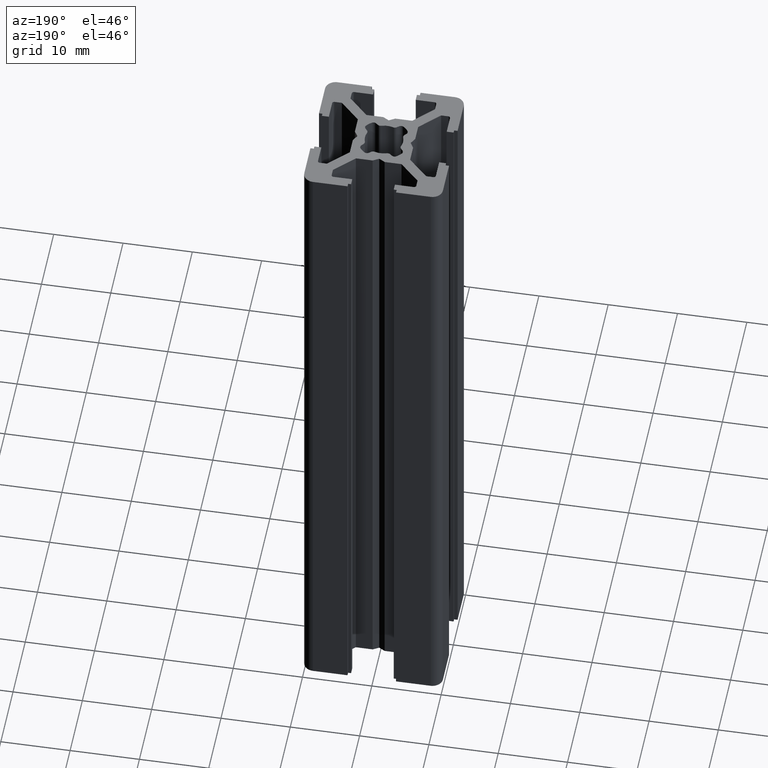
[diagram: clean part render]
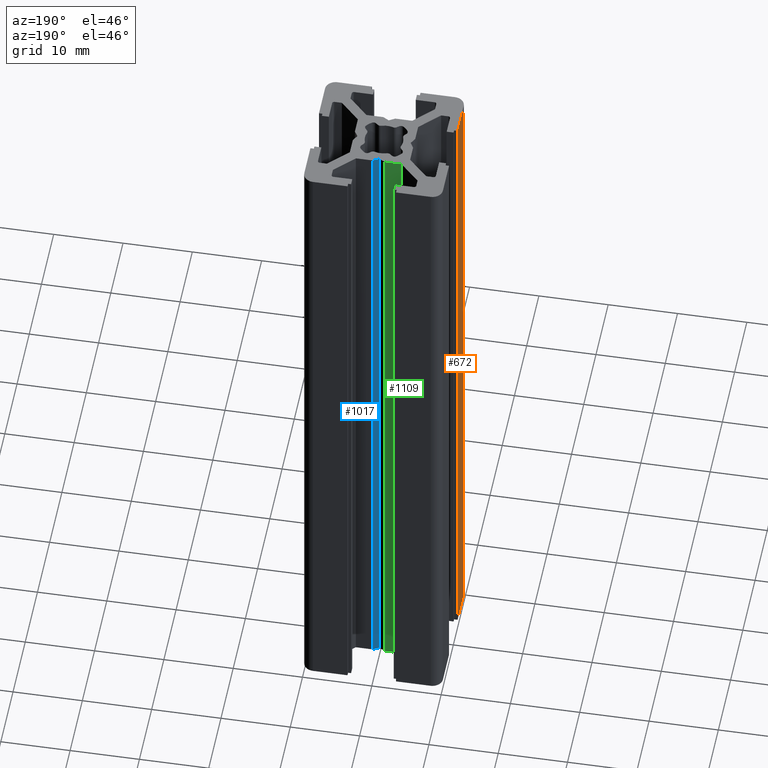
[diagram: same view with three faces highlighted in distinct colors, each labeled with its STEP entity id]
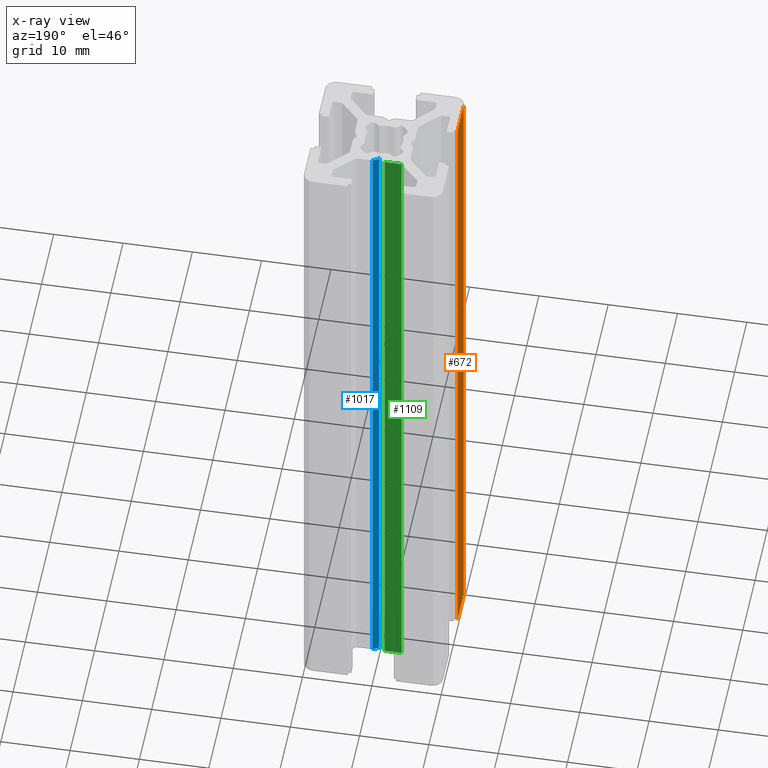
[diagram: x-ray of the same camera — body ghosted, the three highlighted faces saturated]
A machine part, auxiliary view with three faces highlighted in distinct colors.
The next image is the same camera in x-ray (body ghosted, the three faces saturated) — at least one of them is partly hidden behind the body in this view.
Their STEP definitions:

[orange] entity #672 — the highlighted planar face has unit normal (1, 0, 0).
#372 = VERTEX_POINT ( 'NONE', #2204 ) ;
#379 = VERTEX_POINT ( 'NONE', #2201 ) ;
#436 = EDGE_CURVE ( 'NONE', #379, #372, #2305, .T. ) ;
#662 = EDGE_CURVE ( 'NONE', #1467, #379, #2695, .T. ) ;
#670 = EDGE_CURVE ( 'NONE', #1536, #372, #2687, .T. ) ;
#671 = ORIENTED_EDGE ( 'NONE', *, *, #670, .F. ) ;
#672 = ADVANCED_FACE ( 'NONE', ( #2680 ), #2690, .F. ) ;
#682 = EDGE_LOOP ( 'NONE', ( #716, #671, #718, #720 ) ) ;
#716 = ORIENTED_EDGE ( 'NONE', *, *, #436, .T. ) ;
#718 = ORIENTED_EDGE ( 'NONE', *, *, #1535, .F. ) ;
#720 = ORIENTED_EDGE ( 'NONE', *, *, #662, .T. ) ;
#1467 = VERTEX_POINT ( 'NONE', #3860 ) ;
#1535 = EDGE_CURVE ( 'NONE', #1467, #1536, #3981, .T. ) ;
#1536 = VERTEX_POINT ( 'NONE', #3974 ) ;
#2201 = CARTESIAN_POINT ( 'NONE',  ( -10.00000000000000000, -3.500000000000000000, 0.0000000000000000000 ) ) ;
#2204 = CARTESIAN_POINT ( 'NONE',  ( -10.00000000000000000, -8.500000000000000000, 0.0000000000000000000 ) ) ;
#2302 = DIRECTION ( 'NONE',  ( -0.0000000000000000000, -1.000000000000000000, -0.0000000000000000000 ) ) ;
#2303 = VECTOR ( 'NONE', #2302, 1000.000000000000000 ) ;
#2304 = CARTESIAN_POINT ( 'NONE',  ( -10.00000000000000000, -8.500000000000000000, 0.0000000000000000000 ) ) ;
#2305 = LINE ( 'NONE', #2304, #2303 ) ;
#2671 = DIRECTION ( 'NONE',  ( 0.0000000000000000000, 0.0000000000000000000, -1.000000000000000000 ) ) ;
#2676 = DIRECTION ( 'NONE',  ( -0.0000000000000000000, -0.0000000000000000000, -1.000000000000000000 ) ) ;
#2677 = VECTOR ( 'NONE', #2676, 1000.000000000000000 ) ;
#2678 = CARTESIAN_POINT ( 'NONE',  ( -10.00000000000000000, -8.500000000000000000, 100.0000000000000000 ) ) ;
#2679 = DIRECTION ( 'NONE',  ( 1.000000000000000000, 0.0000000000000000000, 0.0000000000000000000 ) ) ;
#2680 = FACE_OUTER_BOUND ( 'NONE', #682, .T. ) ;
#2682 = AXIS2_PLACEMENT_3D ( 'NONE', #2688, #2679, #2671 ) ;
#2687 = LINE ( 'NONE', #2678, #2677 ) ;
#2688 = CARTESIAN_POINT ( 'NONE',  ( -10.00000000000000000, -8.500000000000000000, 100.0000000000000000 ) ) ;
#2689 = DIRECTION ( 'NONE',  ( -0.0000000000000000000, -0.0000000000000000000, -1.000000000000000000 ) ) ;
#2690 = PLANE ( 'NONE',  #2682 ) ;
#2693 = VECTOR ( 'NONE', #2689, 1000.000000000000000 ) ;
#2694 = CARTESIAN_POINT ( 'NONE',  ( -10.00000000000000000, -3.500000000000000000, 100.0000000000000000 ) ) ;
#2695 = LINE ( 'NONE', #2694, #2693 ) ;
#3860 = CARTESIAN_POINT ( 'NONE',  ( -10.00000000000000000, -3.500000000000000000, 100.0000000000000000 ) ) ;
#3970 = DIRECTION ( 'NONE',  ( -0.0000000000000000000, -1.000000000000000000, -0.0000000000000000000 ) ) ;
#3971 = VECTOR ( 'NONE', #3970, 1000.000000000000000 ) ;
#3974 = CARTESIAN_POINT ( 'NONE',  ( -10.00000000000000000, -8.500000000000000000, 100.0000000000000000 ) ) ;
#3976 = CARTESIAN_POINT ( 'NONE',  ( -10.00000000000000000, -8.500000000000000000, 100.0000000000000000 ) ) ;
#3981 = LINE ( 'NONE', #3976, #3971 ) ;

[blue] entity #1017 — the highlighted planar face has unit normal (0.5, -0.866, 0).
#1 = VERTEX_POINT ( 'NONE', #1546 ) ;
#4 = EDGE_CURVE ( 'NONE', #1, #346, #1540, .T. ) ;
#176 = EDGE_CURVE ( 'NONE', #218, #209, #1875, .T. ) ;
#209 = VERTEX_POINT ( 'NONE', #1887 ) ;
#218 = VERTEX_POINT ( 'NONE', #1925 ) ;
#346 = VERTEX_POINT ( 'NONE', #1924 ) ;
#541 = ORIENTED_EDGE ( 'NONE', *, *, #4, .T. ) ;
#615 = ORIENTED_EDGE ( 'NONE', *, *, #1058, .F. ) ;
#1017 = ADVANCED_FACE ( 'NONE', ( #3193 ), #3186, .F. ) ;
#1029 = EDGE_LOOP ( 'NONE', ( #541, #615, #1061, #1066 ) ) ;
#1058 = EDGE_CURVE ( 'NONE', #209, #346, #3231, .T. ) ;
#1061 = ORIENTED_EDGE ( 'NONE', *, *, #176, .F. ) ;
#1066 = ORIENTED_EDGE ( 'NONE', *, *, #1077, .T. ) ;
#1077 = EDGE_CURVE ( 'NONE', #218, #1, #3280, .T. ) ;
#1537 = DIRECTION ( 'NONE',  ( -0.8660253028382761700, -0.5000001748438414100, -0.0000000000000000000 ) ) ;
#1538 = VECTOR ( 'NONE', #1537, 1000.000000000000100 ) ;
#1539 = CARTESIAN_POINT ( 'NONE',  ( 5.000000000000000400E-016, 3.850000000000000100, 0.0000000000000000000 ) ) ;
#1540 = LINE ( 'NONE', #1539, #1538 ) ;
#1546 = CARTESIAN_POINT ( 'NONE',  ( 0.8660250000000004900, 4.349999999999999600, 0.0000000000000000000 ) ) ;
#1871 = DIRECTION ( 'NONE',  ( -0.8660253028382761700, -0.5000001748438414100, -0.0000000000000000000 ) ) ;
#1872 = VECTOR ( 'NONE', #1871, 1000.000000000000100 ) ;
#1873 = CARTESIAN_POINT ( 'NONE',  ( 5.000000000000000400E-016, 3.850000000000000100, 100.0000000000000000 ) ) ;
#1875 = LINE ( 'NONE', #1873, #1872 ) ;
#1887 = CARTESIAN_POINT ( 'NONE',  ( 5.000000000000000400E-016, 3.850000000000000100, 100.0000000000000000 ) ) ;
#1924 = CARTESIAN_POINT ( 'NONE',  ( 5.000000000000000400E-016, 3.850000000000000100, 0.0000000000000000000 ) ) ;
#1925 = CARTESIAN_POINT ( 'NONE',  ( 0.8660250000000004900, 4.349999999999999600, 100.0000000000000000 ) ) ;
#3140 = DIRECTION ( 'NONE',  ( 0.5000001748438414100, -0.8660253028382761700, 0.0000000000000000000 ) ) ;
#3142 = AXIS2_PLACEMENT_3D ( 'NONE', #3191, #3140, #3180 ) ;
#3180 = DIRECTION ( 'NONE',  ( 0.8660253028382761700, 0.5000001748438414100, 0.0000000000000000000 ) ) ;
#3186 = PLANE ( 'NONE',  #3142 ) ;
#3191 = CARTESIAN_POINT ( 'NONE',  ( 5.000000000000000400E-016, 3.850000000000000100, 100.0000000000000000 ) ) ;
#3193 = FACE_OUTER_BOUND ( 'NONE', #1029, .T. ) ;
#3228 = DIRECTION ( 'NONE',  ( -0.0000000000000000000, -0.0000000000000000000, -1.000000000000000000 ) ) ;
#3229 = VECTOR ( 'NONE', #3228, 1000.000000000000000 ) ;
#3230 = CARTESIAN_POINT ( 'NONE',  ( 5.000000000000000400E-016, 3.850000000000000100, 100.0000000000000000 ) ) ;
#3231 = LINE ( 'NONE', #3230, #3229 ) ;
#3268 = DIRECTION ( 'NONE',  ( -0.0000000000000000000, -0.0000000000000000000, -1.000000000000000000 ) ) ;
#3269 = VECTOR ( 'NONE', #3268, 1000.000000000000000 ) ;
#3270 = CARTESIAN_POINT ( 'NONE',  ( 0.8660250000000004900, 4.349999999999999600, 100.0000000000000000 ) ) ;
#3280 = LINE ( 'NONE', #3270, #3269 ) ;

[green] entity #1109 — the highlighted planar face has unit normal (0, -1, 0).
#177 = VERTEX_POINT ( 'NONE', #1874 ) ;
#179 = EDGE_CURVE ( 'NONE', #217, #177, #1870, .T. ) ;
#217 = VERTEX_POINT ( 'NONE', #1926 ) ;
#338 = VERTEX_POINT ( 'NONE', #2171 ) ;
#342 = EDGE_CURVE ( 'NONE', #348, #338, #2165, .T. ) ;
#348 = VERTEX_POINT ( 'NONE', #1919 ) ;
#1053 = ORIENTED_EDGE ( 'NONE', *, *, #1069, .T. ) ;
#1060 = EDGE_LOOP ( 'NONE', ( #1111, #1072, #1113, #1053 ) ) ;
#1069 = EDGE_CURVE ( 'NONE', #217, #348, #3241, .T. ) ;
#1072 = ORIENTED_EDGE ( 'NONE', *, *, #1108, .F. ) ;
#1108 = EDGE_CURVE ( 'NONE', #177, #338, #3284, .T. ) ;
#1109 = ADVANCED_FACE ( 'NONE', ( #3340 ), #3336, .F. ) ;
#1111 = ORIENTED_EDGE ( 'NONE', *, *, #342, .T. ) ;
#1113 = ORIENTED_EDGE ( 'NONE', *, *, #179, .F. ) ;
#1864 = DIRECTION ( 'NONE',  ( -1.000000000000000000, 0.0000000000000000000, 0.0000000000000000000 ) ) ;
#1865 = VECTOR ( 'NONE', #1864, 1000.000000000000000 ) ;
#1866 = CARTESIAN_POINT ( 'NONE',  ( -0.8660249999999993800, 4.349999999999999600, 100.0000000000000000 ) ) ;
#1870 = LINE ( 'NONE', #1866, #1865 ) ;
#1874 = CARTESIAN_POINT ( 'NONE',  ( -3.289340000000001500, 4.349999999999999600, 100.0000000000000000 ) ) ;
#1919 = CARTESIAN_POINT ( 'NONE',  ( -0.8660249999999993800, 4.349999999999999600, 0.0000000000000000000 ) ) ;
#1926 = CARTESIAN_POINT ( 'NONE',  ( -0.8660249999999993800, 4.349999999999999600, 100.0000000000000000 ) ) ;
#2149 = DIRECTION ( 'NONE',  ( -1.000000000000000000, 0.0000000000000000000, 0.0000000000000000000 ) ) ;
#2150 = VECTOR ( 'NONE', #2149, 1000.000000000000000 ) ;
#2153 = CARTESIAN_POINT ( 'NONE',  ( -0.8660249999999993800, 4.349999999999999600, 0.0000000000000000000 ) ) ;
#2165 = LINE ( 'NONE', #2153, #2150 ) ;
#2171 = CARTESIAN_POINT ( 'NONE',  ( -3.289340000000001500, 4.349999999999999600, 0.0000000000000000000 ) ) ;
#3226 = CARTESIAN_POINT ( 'NONE',  ( -0.8660249999999993800, 4.349999999999999600, 100.0000000000000000 ) ) ;
#3241 = LINE ( 'NONE', #3226, #3283 ) ;
#3282 = DIRECTION ( 'NONE',  ( -0.0000000000000000000, -0.0000000000000000000, -1.000000000000000000 ) ) ;
#3283 = VECTOR ( 'NONE', #3282, 1000.000000000000000 ) ;
#3284 = LINE ( 'NONE', #3298, #3293 ) ;
#3292 = DIRECTION ( 'NONE',  ( -0.0000000000000000000, -0.0000000000000000000, -1.000000000000000000 ) ) ;
#3293 = VECTOR ( 'NONE', #3292, 1000.000000000000000 ) ;
#3298 = CARTESIAN_POINT ( 'NONE',  ( -3.289340000000001500, 4.349999999999999600, 100.0000000000000000 ) ) ;
#3329 = DIRECTION ( 'NONE',  ( 0.0000000000000000000, -0.0000000000000000000, -1.000000000000000000 ) ) ;
#3330 = DIRECTION ( 'NONE',  ( 0.0000000000000000000, -1.000000000000000000, 0.0000000000000000000 ) ) ;
#3333 = CARTESIAN_POINT ( 'NONE',  ( -0.8660249999999993800, 4.349999999999999600, 100.0000000000000000 ) ) ;
#3336 = PLANE ( 'NONE',  #3338 ) ;
#3338 = AXIS2_PLACEMENT_3D ( 'NONE', #3333, #3330, #3329 ) ;
#3340 = FACE_OUTER_BOUND ( 'NONE', #1060, .T. ) ;